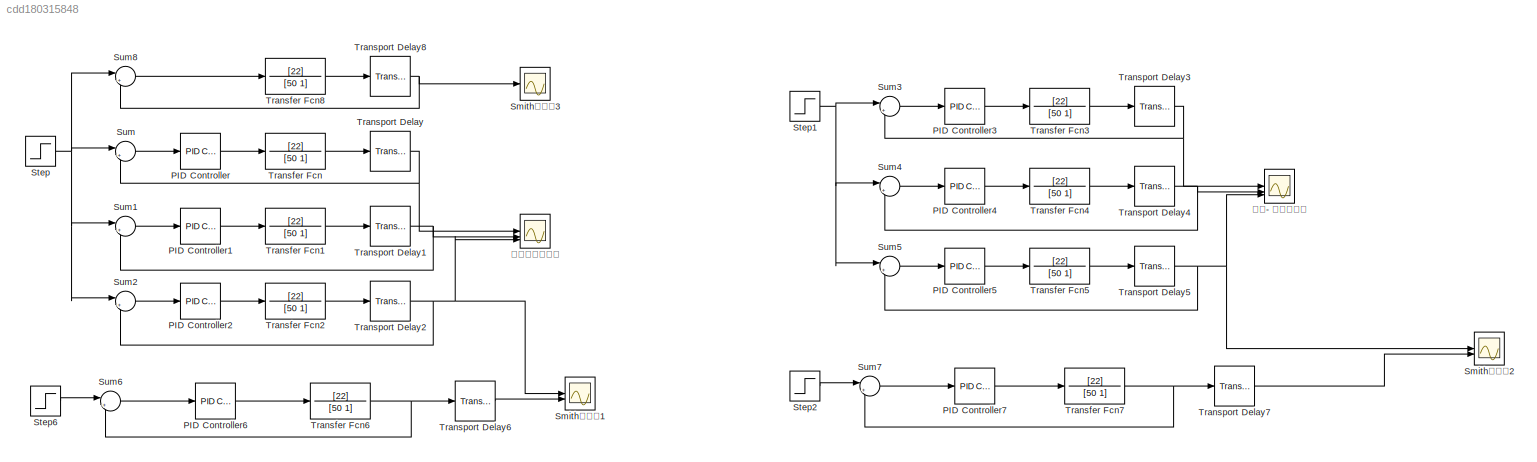
MODEL slx_cdd180315848
KIND model
CONFIG AbsTol = auto
CONFIG EnableMultiTasking = off
CONFIG FixedStep = auto
CONFIG MaxStep = auto
CONFIG MinStep = auto
CONFIG RelTol = 1e-3
CONFIG SampleTimeConstraint = Unconstrained
CONFIG SolverName = VariableStepAuto
CONFIG StartTime = 0.0
CONFIG StopTime = 300
BLOCK [Scope]  动态特性参数法
  Floating = off
  NumInputPorts = 4
  ScopeSpecificationString = Simulink.scopes.TimeScopeBlockCfg('CurrentConfiguration', extmgr.ConfigurationSet(extmgr.Configuration('Core','General UI',true,'FigureColor',[0 0 0]),extmgr.Configuration('Core','Source UI',true),extmgr.Configuration('Sources','WiredSimulink',true,'SampleTime','0.01','DataLoggingVariableName','ScopeData1'),extmgr.Configuration('Visuals','Time Domain',true,'SerializedDisplays',{struct('MinYLimReal...<+1739ch>
BLOCK [Reference] PID Controller  REF=slpidlib/PID Controller
  LibrarySourceBlock = simulink/Continuous/PID Controller
  SourceBlock = slpidlib/PID Controller
  SourceType = PID 1dof
BLOCK [Reference] PID Controller1  REF=slpidlib/PID Controller
  LibrarySourceBlock = simulink/Continuous/PID Controller
  SourceBlock = slpidlib/PID Controller
  SourceType = PID 1dof
BLOCK [Reference] PID Controller2  REF=slpidlib/PID Controller
  LibrarySourceBlock = simulink/Continuous/PID Controller
  SourceBlock = slpidlib/PID Controller
  SourceType = PID 1dof
BLOCK [Reference] PID Controller3  REF=slpidlib/PID Controller
  LibrarySourceBlock = simulink/Continuous/PID Controller
  SourceBlock = slpidlib/PID Controller
  SourceType = PID 1dof
BLOCK [Reference] PID Controller4  REF=slpidlib/PID Controller
  LibrarySourceBlock = simulink/Continuous/PID Controller
  SourceBlock = slpidlib/PID Controller
  SourceType = PID 1dof
BLOCK [Reference] PID Controller5  REF=slpidlib/PID Controller
  LibrarySourceBlock = simulink/Continuous/PID Controller
  SourceBlock = slpidlib/PID Controller
  SourceType = PID 1dof
BLOCK [Reference] PID Controller6  REF=slpidlib/PID Controller
  SourceBlock = slpidlib/PID Controller
  SourceType = PID 1dof
BLOCK [Reference] PID Controller7  REF=slpidlib/PID Controller
  SourceBlock = slpidlib/PID Controller
  SourceType = PID 1dof
BLOCK [Scope] Smith预估器1
  Floating = off
  NumInputPorts = 2
  ScopeSpecificationString = Simulink.scopes.TimeScopeBlockCfg('CurrentConfiguration', extmgr.ConfigurationSet(extmgr.Configuration('Core','General UI',true,'FigureColor',[0 0 0]),extmgr.Configuration('Core','Source UI',true),extmgr.Configuration('Sources','WiredSimulink',true,'SampleTime','0.01','DataLoggingVariableName','ScopeData3'),extmgr.Configuration('Visuals','Time Domain',true,'SerializedDisplays',{struct('MinYLimReal...<+1774ch>
BLOCK [Scope] Smith预估器2
  Floating = off
  NumInputPorts = 2
  ScopeSpecificationString = Simulink.scopes.TimeScopeBlockCfg('CurrentConfiguration', extmgr.ConfigurationSet(extmgr.Configuration('Core','General UI',true,'FigureColor',[0 0 0]),extmgr.Configuration('Core','Source UI',true),extmgr.Configuration('Sources','WiredSimulink',true,'DataLoggingVariableName','ScopeData4'),extmgr.Configuration('Visuals','Time Domain',true,'SerializedDisplays',{struct('MinYLimReal','-0.5','MaxYLimRea...<+1747ch>
BLOCK [Scope] Smith预估器3
  Floating = off
  NumInputPorts = 2
  ScopeSpecificationString = Simulink.scopes.TimeScopeBlockCfg('CurrentConfiguration', extmgr.ConfigurationSet(extmgr.Configuration('Core','General UI',true,'FigureColor',[0 0 0]),extmgr.Configuration('Core','Source UI',true),extmgr.Configuration('Sources','WiredSimulink',true,'SampleTime','0.01','DataLoggingVariableName','ScopeData1'),extmgr.Configuration('Visuals','Time Domain',true,'SerializedDisplays',{struct('MinYLimReal...<+1839ch>
BLOCK [Step] Step
  SampleTime = 0
BLOCK [Step] Step1
  SampleTime = 0
BLOCK [Step] Step2
  SampleTime = 0
BLOCK [Step] Step6
  SampleTime = 0
BLOCK [Sum] Sum
  Inputs = |+-
BLOCK [Sum] Sum1
  Inputs = |+-
BLOCK [Sum] Sum2
  Inputs = |+-
BLOCK [Sum] Sum3
  Inputs = |+-
BLOCK [Sum] Sum4
  Inputs = |+-
BLOCK [Sum] Sum5
  Inputs = |+-
BLOCK [Sum] Sum6
  Inputs = |+-
BLOCK [Sum] Sum7
  Inputs = |+-
BLOCK [Sum] Sum8
  Inputs = |+-
BLOCK [TransferFcn] Transfer Fcn
  Denominator = [50 1]
  Numerator = [22]
BLOCK [TransferFcn] Transfer Fcn1
  Denominator = [50 1]
  Numerator = [22]
BLOCK [TransferFcn] Transfer Fcn2
  Denominator = [50 1]
  Numerator = [22]
BLOCK [TransferFcn] Transfer Fcn3
  Denominator = [50 1]
  Numerator = [22]
BLOCK [TransferFcn] Transfer Fcn4
  Denominator = [50 1]
  Numerator = [22]
BLOCK [TransferFcn] Transfer Fcn5
  Denominator = [50 1]
  Numerator = [22]
BLOCK [TransferFcn] Transfer Fcn6
  Denominator = [50 1]
  Numerator = [22]
BLOCK [TransferFcn] Transfer Fcn7
  Denominator = [50 1]
  Numerator = [22]
BLOCK [TransferFcn] Transfer Fcn8
  Denominator = [50 1]
  Numerator = [22]
BLOCK [TransportDelay] Transport Delay
  DelayTime = 20
BLOCK [TransportDelay] Transport Delay1
  DelayTime = 20
BLOCK [TransportDelay] Transport Delay2
  DelayTime = 20
BLOCK [TransportDelay] Transport Delay3
  DelayTime = 20
BLOCK [TransportDelay] Transport Delay4
  DelayTime = 20
BLOCK [TransportDelay] Transport Delay5
  DelayTime = 20
BLOCK [TransportDelay] Transport Delay6
  DelayTime = 20
BLOCK [TransportDelay] Transport Delay7
  DelayTime = 20
BLOCK [TransportDelay] Transport Delay8
  DelayTime = 20
BLOCK [Scope] 科恩- 库恩整定法
  Floating = off
  NumInputPorts = 3
  ScopeSpecificationString = Simulink.scopes.TimeScopeBlockCfg('CurrentConfiguration', extmgr.ConfigurationSet(extmgr.Configuration('Core','General UI',true,'FigureColor',[0 0 0]),extmgr.Configuration('Core','Source UI',true),extmgr.Configuration('Sources','WiredSimulink',true,'SampleTime','0.01'),extmgr.Configuration('Visuals','Time Domain',true,'SerializedDisplays',{struct('MinYLimReal','-0.22888','MaxYLimReal','2.05996','Y...<+1700ch>
LINE PID Controller1:1 -> Transfer Fcn1:1
LINE PID Controller2:1 -> Transfer Fcn2:1
LINE PID Controller3:1 -> Transfer Fcn3:1
LINE PID Controller4:1 -> Transfer Fcn4:1
LINE PID Controller5:1 -> Transfer Fcn5:1
LINE PID Controller6:1 -> Transfer Fcn6:1
LINE PID Controller7:1 -> Transfer Fcn7:1
LINE PID Controller:1 -> Transfer Fcn:1
NET Step1:1 -> Sum3:1, Sum4:1, Sum5:1
LINE Step2:1 -> Sum7:1
LINE Step6:1 -> Sum6:1
NET Step:1 -> Sum1:1, Sum2:1, Sum8:1, Sum:1
LINE Sum1:1 -> PID Controller1:1
LINE Sum2:1 -> PID Controller2:1
LINE Sum3:1 -> PID Controller3:1
LINE Sum4:1 -> PID Controller4:1
LINE Sum5:1 -> PID Controller5:1
LINE Sum6:1 -> PID Controller6:1
LINE Sum7:1 -> PID Controller7:1
LINE Sum8:1 -> Transfer Fcn8:1
LINE Sum:1 -> PID Controller:1
LINE Transfer Fcn1:1 -> Transport Delay1:1
LINE Transfer Fcn2:1 -> Transport Delay2:1
LINE Transfer Fcn3:1 -> Transport Delay3:1
LINE Transfer Fcn4:1 -> Transport Delay4:1
LINE Transfer Fcn5:1 -> Transport Delay5:1
NET Transfer Fcn6:1 -> Sum6:2, Transport Delay6:1
NET Transfer Fcn7:1 -> Sum7:2, Transport Delay7:1
LINE Transfer Fcn8:1 -> Transport Delay8:1
LINE Transfer Fcn:1 -> Transport Delay:1
NET Transport Delay1:1 ->  动态特性参数法:2, Sum1:2
NET Transport Delay2:1 ->  动态特性参数法:3, Smith预估器1:1, Sum2:2
NET Transport Delay3:1 -> Sum3:2, 科恩- 库恩整定法:1
NET Transport Delay4:1 -> Sum4:2, 科恩- 库恩整定法:2
NET Transport Delay5:1 -> Smith预估器2:1, Sum5:2, 科恩- 库恩整定法:3
LINE Transport Delay6:1 -> Smith预估器1:2
LINE Transport Delay7:1 -> Smith预估器2:2
NET Transport Delay8:1 -> Smith预估器3:1, Sum8:2
NET Transport Delay:1 ->  动态特性参数法:1, Sum:2
note: NET lines group one-source signal fan-out (src -> all destinations, sorted); 1:1 wires keep LINE
